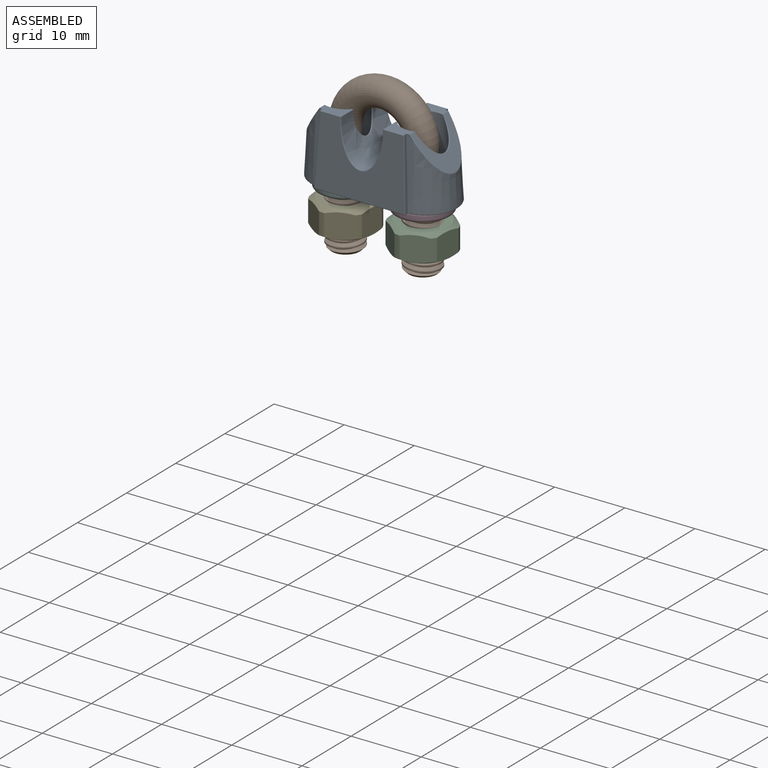
[diagram: assembled view]
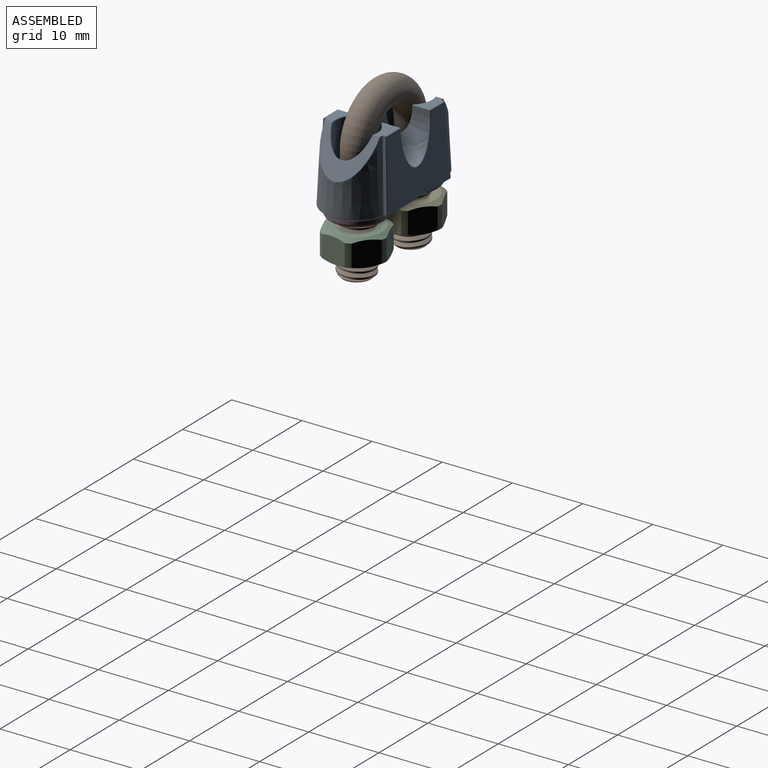
[diagram: assembled view, second angle]
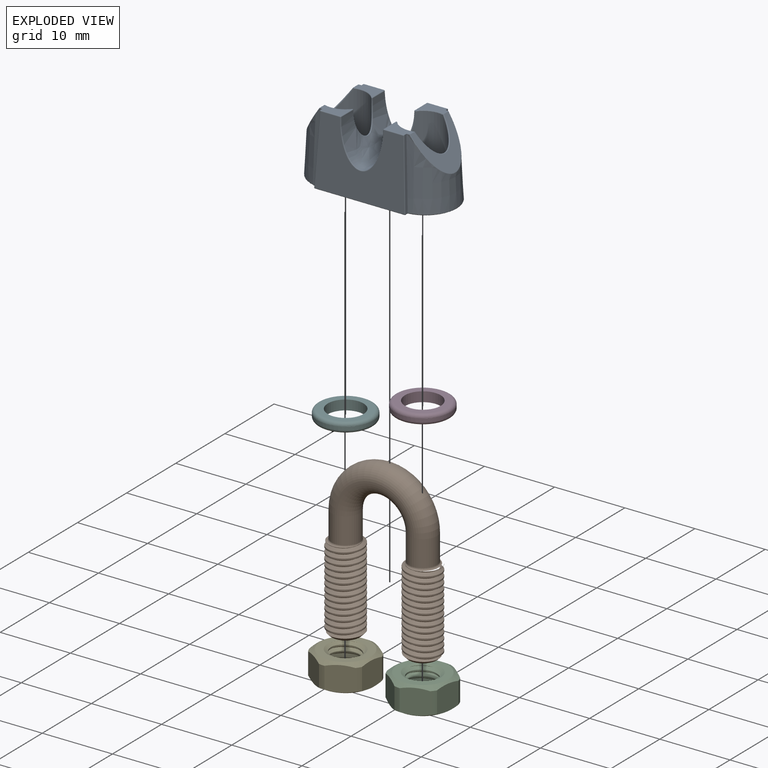
[diagram: exploded view]
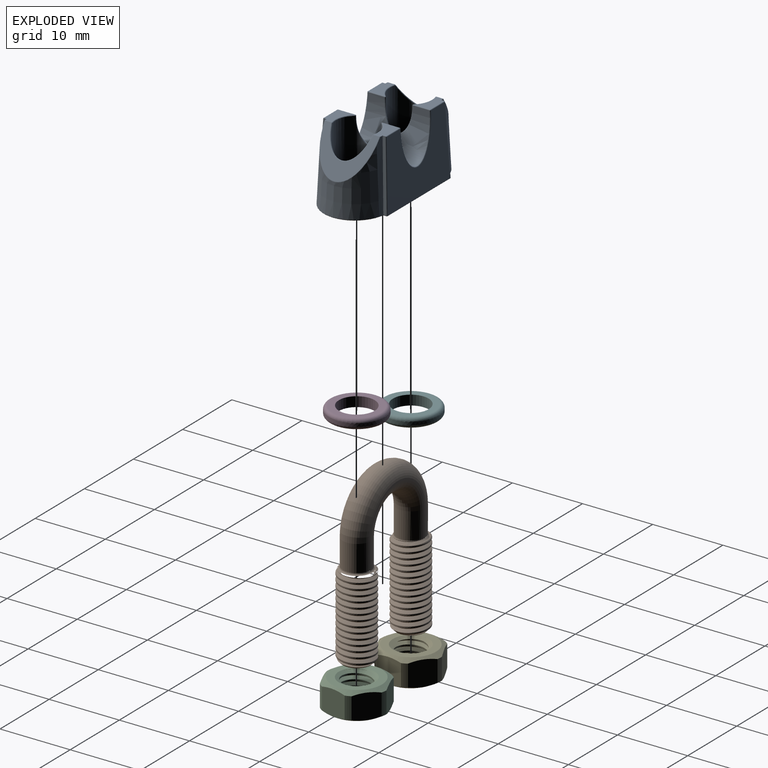
[diagram: exploded view, second angle]
ASSEMBLY  parts=6 mates=6
PART A: 68 faces, bbox 21.6x10x10.9 mm
  f0: plane 3.3x2.4mm, normal (0,0,1), area 5mm2, adj f9,f13,f18,f19,f22,f23,f25,f26
  f1: plane 3.37x2.51mm, normal (0,0,1), area 5.1mm2, adj f4,f7,f17,f30,f36,f37,f38,f43
  f2: plane 3.37x2.51mm, normal (0,0,1), area 5.1mm2, adj f4,f8,f17,f43,f49,f59,f63,f64
  f3: plane 3.3x2.4mm, normal (0,0,1), area 5mm2, adj f6,f13,f22,f28,f40,f46,f51,f52
  f4: cone r=4mm half-angle=2.9deg, axis (0,0,-1), area 84.3mm2, adj f1,f2,f7,f8,f54,f65
  f5: cylinder r=3mm len=9.8mm, axis (0,0,-1), area 156.5mm2, adj f37,f43,f49,f50,f66
  f6: plane 9.92x0.92mm, normal (-1,0,0.05), area 4.1mm2, adj f3,f13,f46,f47
  f7: plane 9.92x0.92mm, normal (1,0,0.05), area 4.1mm2, adj f1,f4,f36,f48
  f8: plane 9.92x0.92mm, normal (1,0,0.05), area 4.1mm2, adj f2,f4,f58,f63
  f9: plane 9.92x0.92mm, normal (-1,0,0.05), area 4.1mm2, adj f0,f13,f23,f34
  f10: plane 20.59x9.79mm, normal (0,0,-1), area 116.8mm2, adj f34,f35,f41,f47,f48,f54,f57,f58
  f11: plane 12.79x9.8mm, normal (0,1,0.05), area 91.3mm2, adj f46,f52,f57,f60,f63,f64
  f12: plane 12.79x9.8mm, normal (0,-1,0.05), area 91.3mm2, adj f19,f23,f24,f30,f35,f36
  f13: cone r=4mm half-angle=2.9deg, axis (0,0,-1), area 84.3mm2, adj f0,f3,f6,f9,f22,f41
  f14: cylinder r=3mm len=9.8mm, axis (0,0,-1), area 159.6mm2, adj f26,f27,f39,f40,f67
  f15: extruded ~8.81x6mm, area 101.9mm2, adj f24,f25,f38,f39,f50,f51,f59,f60
  f16: plane 7.75x5.33mm, normal (-0.82,0,0.57), area 22.2mm2, adj f18,f22,f27,f28
  f17: plane 7.75x5.37mm, normal (0.82,0,0.57), area 21.6mm2, adj f1,f2,f43,f65
  f18: cylinder r=0.1mm len=1mm, axis (0,-1,0), area 0.1mm2, adj f0,f16,f21,f22
  f19: cylinder r=0.1mm len=2.9mm, axis (1,0,0), area 0.4mm2, adj f0,f12,f20,f23
  f20: sphere r=0.1mm, area 0mm2, adj f19,f24,f25
  f21: sphere r=0.1mm, area 0mm2, adj f18,f26,f27
  f22: bspline ~7.95x5.47mm, area 1.6mm2, adj f0,f3,f13,f16,f18,f28
  f23: cylinder r=0.1mm len=9.9mm, axis (0.05,0.05,1), area 1.6mm2, adj f0,f9,f12,f19,f29
  f24: bspline ~6.97x6.2mm, area 2.2mm2, adj f12,f15,f20,f31
  f25: cylinder r=0.1mm len=2.4mm, axis (0,-1,0), area 0.4mm2, adj f0,f15,f20,f32
  f26: torus R=3.1mm, axis (0,0,1), area 0.6mm2, adj f0,f14,f21,f32
  f27: bspline ~5.91x3.2mm, area 2.3mm2, adj f14,f16,f21,f33
  f28: cylinder r=0.1mm len=1mm, axis (0,-1,0), area 0.1mm2, adj f3,f16,f22,f33
  f29: sphere r=0.1mm, area 0mm2, adj f23,f34,f35
  f30: cylinder r=0.1mm len=2.9mm, axis (1,0,0), area 0.4mm2, adj f1,f12,f31,f36
  f31: sphere r=0.1mm, area 0mm2, adj f24,f30,f38
  f32: sphere r=0.1mm, area 0mm2, adj f25,f26,f39
  f33: sphere r=0.1mm, area 0mm2, adj f27,f28,f40
  f34: cylinder r=0.1mm len=0.53mm, axis (0,1,0), area 0.1mm2, adj f9,f10,f29,f41
  f35: cylinder r=0.1mm len=12.79mm, axis (-1,0,0), area 2.1mm2, adj f10,f12,f29,f42
  f36: cylinder r=0.1mm len=9.9mm, axis (0.05,-0.05,-1), area 1.6mm2, adj f1,f7,f12,f30,f42
  f37: torus R=3.1mm, axis (0,0,1), area 0.6mm2, adj f1,f5,f43,f44
  f38: cylinder r=0.1mm len=2.49mm, axis (0,-1,0), area 0.4mm2, adj f1,f15,f31,f44
  f39: bspline ~4.48x4.01mm, area 2.5mm2, adj f14,f15,f32,f45
  f40: torus R=3.1mm, axis (0,0,1), area 0.6mm2, adj f3,f14,f33,f45
  f41: torus R=4.39mm, axis (0,0,-1), area 2.1mm2, adj f10,f13,f34,f47
  f42: sphere r=0.1mm, area 0mm2, adj f35,f36,f48
  f43: bspline ~5.97x3.35mm, area 2.3mm2, adj f1,f2,f5,f17,f37,f49
  f44: sphere r=0.1mm, area 0mm2, adj f37,f38,f50
  f45: sphere r=0.1mm, area 0mm2, adj f39,f40,f51
  f46: cylinder r=0.1mm len=9.9mm, axis (-0.05,0.05,-1), area 1.6mm2, adj f3,f6,f11,f52,f53
  f47: cylinder r=0.1mm len=0.53mm, axis (0,1,0), area 0.1mm2, adj f6,f10,f41,f53
  f48: cylinder r=0.1mm len=0.53mm, axis (0,1,0), area 0.1mm2, adj f7,f10,f42,f54
  f49: torus R=3.1mm, axis (0,0,1), area 0.6mm2, adj f2,f5,f43,f55
  f50: bspline ~4.43x3.84mm, area 2.4mm2, adj f5,f15,f44,f55
  f51: cylinder r=0.1mm len=2.4mm, axis (0,-1,0), area 0.4mm2, adj f3,f15,f45,f56
  f52: cylinder r=0.1mm len=2.9mm, axis (-1,0,0), area 0.4mm2, adj f3,f11,f46,f56
  f53: sphere r=0.1mm, area 0mm2, adj f46,f47,f57
  f54: torus R=4.39mm, axis (0,0,-1), area 2.1mm2, adj f4,f10,f48,f58
  f55: sphere r=0.1mm, area 0mm2, adj f49,f50,f59
  f56: sphere r=0.1mm, area 0mm2, adj f51,f52,f60
  f57: cylinder r=0.1mm len=12.79mm, axis (1,0,0), area 2.1mm2, adj f10,f11,f53,f61
  f58: cylinder r=0.1mm len=0.53mm, axis (0,1,0), area 0.1mm2, adj f8,f10,f54,f61
  f59: cylinder r=0.1mm len=2.49mm, axis (0,-1,0), area 0.4mm2, adj f2,f15,f55,f62
  f60: bspline ~6.97x6.2mm, area 2.2mm2, adj f11,f15,f56,f62
  f61: sphere r=0.1mm, area 0mm2, adj f57,f58,f63
  f62: sphere r=0.1mm, area 0mm2, adj f59,f60,f64
  f63: cylinder r=0.1mm len=9.9mm, axis (-0.05,-0.05,1), area 1.6mm2, adj f2,f8,f11,f61,f64
  f64: cylinder r=0.1mm len=2.9mm, axis (-1,0,0), area 0.4mm2, adj f2,f11,f62,f63
  f65: bspline ~7.95x5.47mm, area 1.6mm2, adj f1,f2,f4,f17
  f66: torus R=3.1mm, axis (0,0,-1), area 3mm2, adj f5,f10
  f67: torus R=3.1mm, axis (0,0,-1), area 3mm2, adj f10,f14
PART B: 34 faces, bbox 16.4x5.9x24.4 mm
  f0: cylinder r=2mm len=4mm, axis (0,0,1), area 47.1mm2, adj f1,f10
  f1: torus R=5.5mm, axis (0,1,0), area 217.1mm2, adj f0,f2
  f2: cylinder r=2mm len=4mm, axis (0,0,-1), area 47.1mm2, adj f1,f11
  f3: cylinder r=2.5mm len=11.25mm, axis (0,0,1), area 47.2mm2, adj f8,f9,f17,f20
  f4: plane 4x4mm, normal (0,0,-1), area 12.6mm2, adj f8
  f5: cylinder r=2.5mm len=11.23mm, axis (0,0,1), area 48.5mm2, adj f12,f25,f26,f28
  f6: plane 4x4mm, normal (0,0,-1), area 12.6mm2, adj f7
  f7: cone r=2mm half-angle=45deg, axis (0,0,1), area 6.2mm2, adj f6,f15,f16,f25,f26,f28
  f8: cone r=2mm half-angle=45deg, axis (0,0,1), area 6.2mm2, adj f3,f4,f13,f14,f17,f20
  f9: torus R=2.25mm, axis (0,0,-1), area 1.7mm2, adj f3,f10,f18,f22
  f10: torus R=2.25mm, axis (0,0,-1), area 4mm2, adj f0,f9,f19,f21,f23,f24
  f11: torus R=2.25mm, axis (0,0,-1), area 4.1mm2, adj f2,f12,f29,f31,f32,f33
  f12: torus R=2.25mm, axis (0,0,-1), area 1.8mm2, adj f5,f11,f27,f30
  f13: bspline ~12.46x5.94mm, area 112.3mm2, adj f8,f14,f20,f22,f24
  f14: bspline ~12.6x5.94mm, area 113.7mm2, adj f8,f13,f17,f18,f19,f23
  f15: bspline ~12.46x5.94mm, area 112.3mm2, adj f7,f16,f28,f30,f32
  f16: bspline ~12.6x5.94mm, area 113.7mm2, adj f7,f15,f25,f27,f29,f33
  f17: bspline ~11.4x5.01mm, area 11.6mm2, adj f3,f8,f14,f18
  f18: bspline ~1.89x1.19mm, area 0.1mm2, adj f9,f14,f17,f19
  f19: bspline ~1.52x0.61mm, area 0mm2, adj f10,f14,f18,f21
  f20: bspline ~11.35x5.01mm, area 11.6mm2, adj f3,f8,f13,f22
  f21: bspline ~1.38x0.16mm, area 0mm2, adj f10,f19,f23
  f22: bspline ~4.86x2.4mm, area 0.5mm2, adj f9,f13,f20,f24
  f23: bspline ~2.33x0.75mm, area 0.1mm2, adj f10,f14,f21,f24
  f24: bspline ~3.5x2.96mm, area 0.6mm2, adj f10,f13,f22,f23
  f25: bspline ~11.4x5.01mm, area 11.6mm2, adj f5,f7,f16,f26,f27
  f26: torus R=2.45mm, axis (0,0,-1), area 0.2mm2, adj f5,f7,f25,f28
  f27: bspline ~1.98x1.37mm, area 0.1mm2, adj f12,f16,f25,f29
  f28: bspline ~11.32x5.01mm, area 11.5mm2, adj f5,f7,f15,f26,f30
  f29: bspline ~1.52x0.61mm, area 0mm2, adj f11,f16,f27,f31
  f30: bspline ~4.81x1.94mm, area 0.5mm2, adj f12,f15,f28,f32
  f31: bspline ~1.15x0.16mm, area 0mm2, adj f11,f29,f33
  f32: bspline ~3.5x2.96mm, area 0.6mm2, adj f11,f15,f30,f33
  f33: bspline ~2.4x0.83mm, area 0.1mm2, adj f11,f16,f31,f32
PART C: 22 faces, bbox 8.8x4.7x8.8 mm
  f0: cone r=2.56mm half-angle=60deg, axis (0,1,0), area 5.5mm2, adj f6,f7,f19,f20,f21
  f1: cylinder r=4.4mm len=3.08mm, axis (0,-1,0), area 2.5mm2, adj f9,f11,f12,f17
  f2: cylinder r=4.4mm len=3.08mm, axis (0,-1,0), area 2.5mm2, adj f9,f11,f16,f17
  f3: cylinder r=4.4mm len=3.08mm, axis (0,-1,0), area 2.5mm2, adj f9,f11,f15,f16
  f4: cylinder r=4.4mm len=3.08mm, axis (0,-1,0), area 2.5mm2, adj f9,f11,f14,f15
  f5: cylinder r=4.4mm len=3.08mm, axis (0,-1,0), area 2.5mm2, adj f9,f11,f13,f14
  f6: plane 7.2x7.2mm, normal (0,1,0), area 20mm2, adj f0,f11
  f7: cylinder r=2.06mm len=4.13mm, axis (0,-1,0), area 10.7mm2, adj f0,f18,f19,f21
  f8: plane 7.2x7.2mm, normal (0,-1,0), area 20mm2, adj f9,f18
  f9: cone r=3.6mm half-angle=60deg, axis (0,1,0), area 16.4mm2, adj f1,f2,f3,f4,f5,f8,f10,f12
  f10: cylinder r=4.4mm len=3.08mm, axis (0,-1,0), area 2.5mm2, adj f9,f11,f12,f13
  f11: cone r=4.4mm half-angle=60deg, axis (0,-1,0), area 16.4mm2, adj f1,f2,f3,f4,f5,f6,f10,f12
  f12: plane 3.67x3.54mm, normal (1,0,0), area 12.4mm2, adj f1,f9,f10,f11
  f13: plane 3.54x3.18mm, normal (0.5,0,-0.87), area 12.4mm2, adj f5,f9,f10,f11
  f14: plane 3.54x3.18mm, normal (-0.5,0,-0.87), area 12.4mm2, adj f4,f5,f9,f11
  f15: plane 3.67x3.54mm, normal (-1,0,0), area 12.4mm2, adj f3,f4,f9,f11
  f16: plane 3.54x3.18mm, normal (-0.5,0,0.87), area 12.4mm2, adj f2,f3,f9,f11
  f17: plane 3.54x3.18mm, normal (0.5,0,0.87), area 12.4mm2, adj f1,f2,f9,f11
  f18: cone r=2.06mm half-angle=60deg, axis (0,-1,0), area 5.5mm2, adj f7,f8,f19,f20,f21
  f19: bspline ~5.92x5.13mm, area 39.1mm2, adj f0,f7,f18,f20
  f20: bspline ~5.92x5.13mm, area 37.5mm2, adj f0,f18,f19,f21
  f21: bspline ~4.19x4.19mm, area 2.9mm2, adj f0,f7,f18,f20
PART D: 6 faces, bbox 8.6x1.4x8.6 mm
  f0: cylinder r=2.55mm len=5.1mm, axis (0,-1,0), area 22.4mm2, adj f1,f3
  f1: plane 6.9x6.9mm, normal (0,1,0), area 17mm2, adj f0,f5
  f2: cylinder r=3.95mm len=7.9mm, axis (0,-1,0), area 9.9mm2, adj f4,f5
  f3: plane 6.9x6.9mm, normal (0,-1,0), area 17mm2, adj f0,f4
  f4: torus R=3.45mm, axis (0,1,0), area 18.6mm2, adj f2,f3
  f5: torus R=3.45mm, axis (0,-1,0), area 18.6mm2, adj f1,f2
PART E: same geometry as C
PART F: same geometry as D
PLACE A t=(-3.3,1.42,-0.31)mm fixed
PLACE B t=(-8.76,1.42,2.47)mm
PLACE C rot(axis=(-0.72,0.49,-0.49),108.4deg) t=(2.24,1.42,-5.47)mm
PLACE D rot(axis=(-1,0,0),90deg) t=(2.24,1.42,-1.01)mm
PLACE E rot(axis=(0.03,0.71,0.71),176.7deg) t=(-8.76,1.42,-4.48)mm
PLACE F rot(axis=(-1,0,0),90deg) t=(-8.76,1.42,-1.01)mm
MATE cylindrical A.f14 <-> B.f0  axis (0,0,-1) through (-8.76,1.42,4.69)mm
MATE planar D.f0 <-> A.f5  axis (0,0,1) through (2.24,1.42,-0.31)mm
MATE cylindrical C.f0 <-> B.f5  axis (0,0,1) through (2.24,1.42,-2.99)mm
MATE cylindrical E.f0 <-> B.f3  axis (0,0,-1) through (-8.76,1.42,-6.97)mm
MATE revolute B.f2 <-> A.f5  axis (0,0,-1) through (2.24,1.42,4.59)mm
MATE planar F.f0 <-> A.f14  axis (0,0,1) through (-8.76,1.42,-0.31)mm
